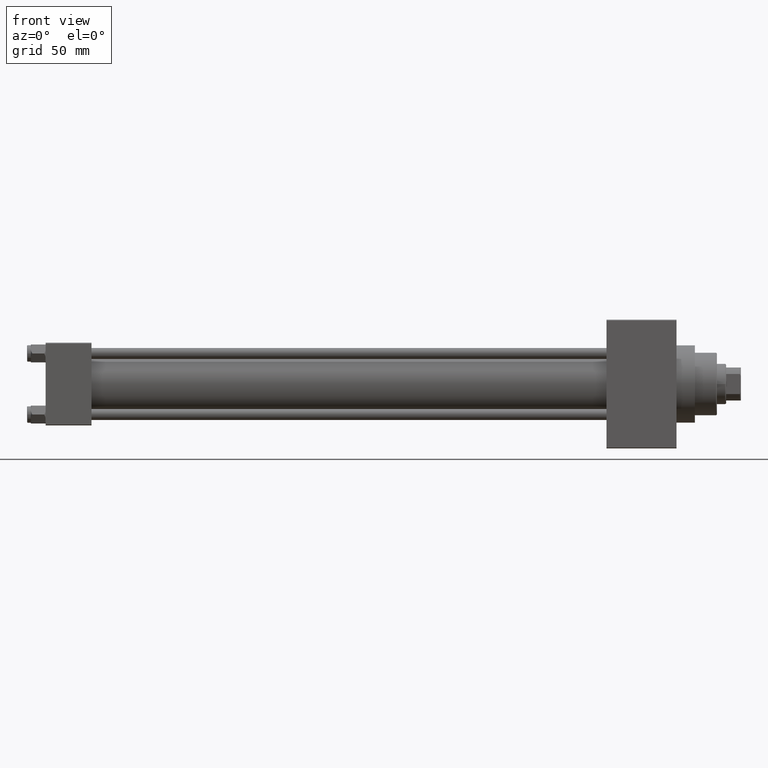
[diagram: clean part render]
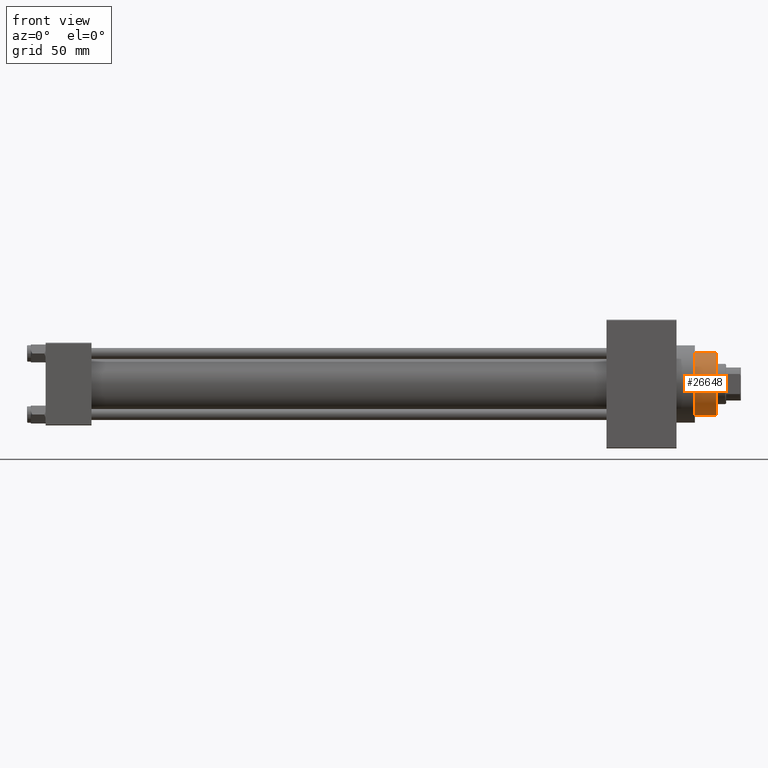
[diagram: same view with one face highlighted and labeled with its STEP entity id]
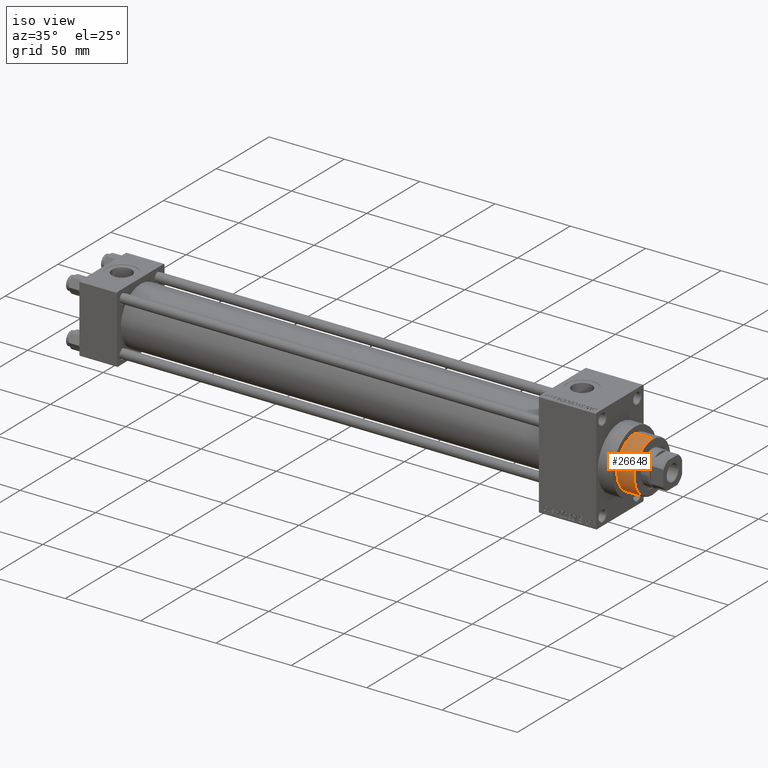
[diagram: same view with one face highlighted and labeled with its STEP entity id]
A machine part, front view. The second image highlights one B-rep face of the part: STEP entity #26648.
A second angle (iso view) of the same face is appended — the face is thin or edge-on in the first view.
In plain terms, the highlighted cylindrical surface (edge-blend (fillet) strip) has radius 17 mm, axis along (-1, 0, 0).
Its self-contained STEP definition (entity closure, byte-faithful):
#94 = AXIS2_PLACEMENT_3D ( 'NONE', #44317, #15018, #11279 ) ;
#810 = CIRCLE ( 'NONE', #23022, 17.00000000000000000 ) ;
#1122 = VERTEX_POINT ( 'NONE', #21638 ) ;
#1463 = ORIENTED_EDGE ( 'NONE', *, *, #27106, .T. ) ;
#3575 = LINE ( 'NONE', #18737, #37066 ) ;
#5125 = DIRECTION ( 'NONE',  ( 1.000000000000000000, 0.000000000000000000, 0.000000000000000000 ) ) ;
#9131 = CARTESIAN_POINT ( 'NONE',  ( 0.000000000000000000, 0.000000000000000000, 55.26000000000000512 ) ) ;
#9456 = VECTOR ( 'NONE', #12251, 1000.000000000000000 ) ;
#10380 = ORIENTED_EDGE ( 'NONE', *, *, #20839, .T. ) ;
#10429 = EDGE_LOOP ( 'NONE', ( #10380, #22608, #1463, #15383 ) ) ;
#10962 = EDGE_CURVE ( 'NONE', #22360, #1122, #3575, .T. ) ;
#11279 = DIRECTION ( 'NONE',  ( 1.000000000000000000, 0.000000000000000000, 0.000000000000000000 ) ) ;
#12251 = DIRECTION ( 'NONE',  ( -0.000000000000000000, -0.000000000000000000, -1.000000000000000000 ) ) ;
#12377 = CYLINDRICAL_SURFACE ( 'NONE', #30245, 17.00000000000000000 ) ;
#12425 = CARTESIAN_POINT ( 'NONE',  ( -17.00000000000000000, 0.000000000000000000, 54.76000000000001222 ) ) ;
#15018 = DIRECTION ( 'NONE',  ( 0.000000000000000000, 0.000000000000000000, 1.000000000000000000 ) ) ;
#15383 = ORIENTED_EDGE ( 'NONE', *, *, #10962, .F. ) ;
#18672 = CARTESIAN_POINT ( 'NONE',  ( 17.00000000000000000, 2.081899558550500280E-15, 54.76000000000001222 ) ) ;
#18737 = CARTESIAN_POINT ( 'NONE',  ( -17.00000000000000000, 0.000000000000000000, 55.26000000000000512 ) ) ;
#19150 = CIRCLE ( 'NONE', #94, 17.00000000000000000 ) ;
#19668 = EDGE_CURVE ( 'NONE', #45537, #21139, #24415, .T. ) ;
#20839 = EDGE_CURVE ( 'NONE', #22360, #45537, #810, .T. ) ;
#21139 = VERTEX_POINT ( 'NONE', #33629 ) ;
#21638 = CARTESIAN_POINT ( 'NONE',  ( -17.00000000000000000, 0.000000000000000000, 43.25999999999999801 ) ) ;
#22360 = VERTEX_POINT ( 'NONE', #12425 ) ;
#22608 = ORIENTED_EDGE ( 'NONE', *, *, #19668, .T. ) ;
#23022 = AXIS2_PLACEMENT_3D ( 'NONE', #24018, #39176, #5125 ) ;
#24018 = CARTESIAN_POINT ( 'NONE',  ( 0.000000000000000000, 0.000000000000000000, 54.76000000000001222 ) ) ;
#24415 = LINE ( 'NONE', #39578, #9456 ) ;
#26648 = ADVANCED_FACE ( 'NONE', ( #31024 ), #12377, .T. ) ;
#27106 = EDGE_CURVE ( 'NONE', #21139, #1122, #19150, .T. ) ;
#30245 = AXIS2_PLACEMENT_3D ( 'NONE', #9131, #46153, #46637 ) ;
#31024 = FACE_OUTER_BOUND ( 'NONE', #10429, .T. ) ;
#33629 = CARTESIAN_POINT ( 'NONE',  ( 17.00000000000000000, 2.081899558550500280E-15, 43.25999999999999801 ) ) ;
#33898 = DIRECTION ( 'NONE',  ( -0.000000000000000000, -0.000000000000000000, -1.000000000000000000 ) ) ;
#37066 = VECTOR ( 'NONE', #33898, 1000.000000000000000 ) ;
#39176 = DIRECTION ( 'NONE',  ( 0.000000000000000000, 0.000000000000000000, -1.000000000000000000 ) ) ;
#39578 = CARTESIAN_POINT ( 'NONE',  ( 17.00000000000000000, 2.081899558550500280E-15, 55.26000000000000512 ) ) ;
#44317 = CARTESIAN_POINT ( 'NONE',  ( 0.000000000000000000, 0.000000000000000000, 43.25999999999999801 ) ) ;
#45537 = VERTEX_POINT ( 'NONE', #18672 ) ;
#46153 = DIRECTION ( 'NONE',  ( -0.000000000000000000, -0.000000000000000000, -1.000000000000000000 ) ) ;
#46637 = DIRECTION ( 'NONE',  ( -1.000000000000000000, 0.000000000000000000, 0.000000000000000000 ) ) ;